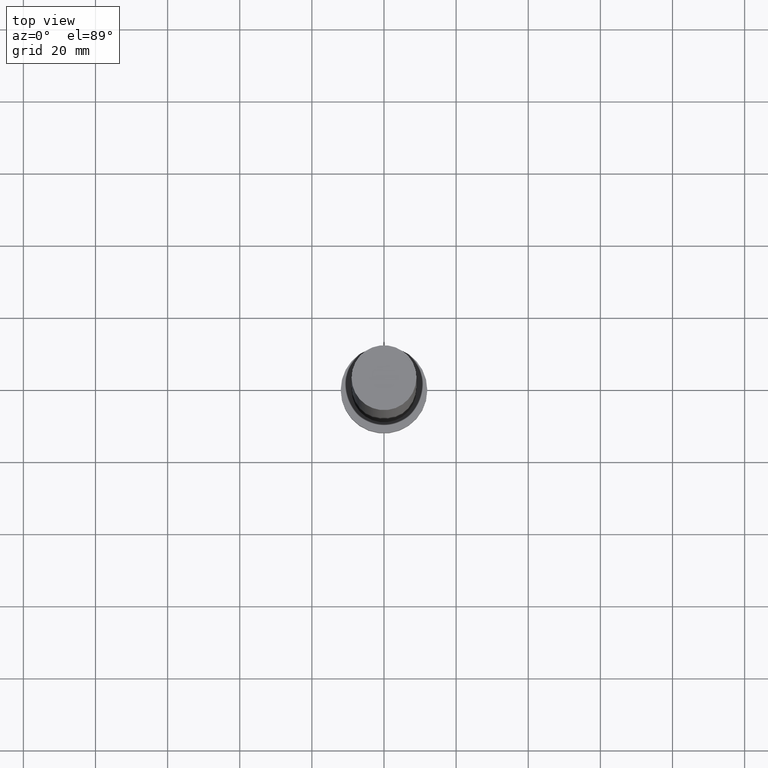
[diagram: clean part render]
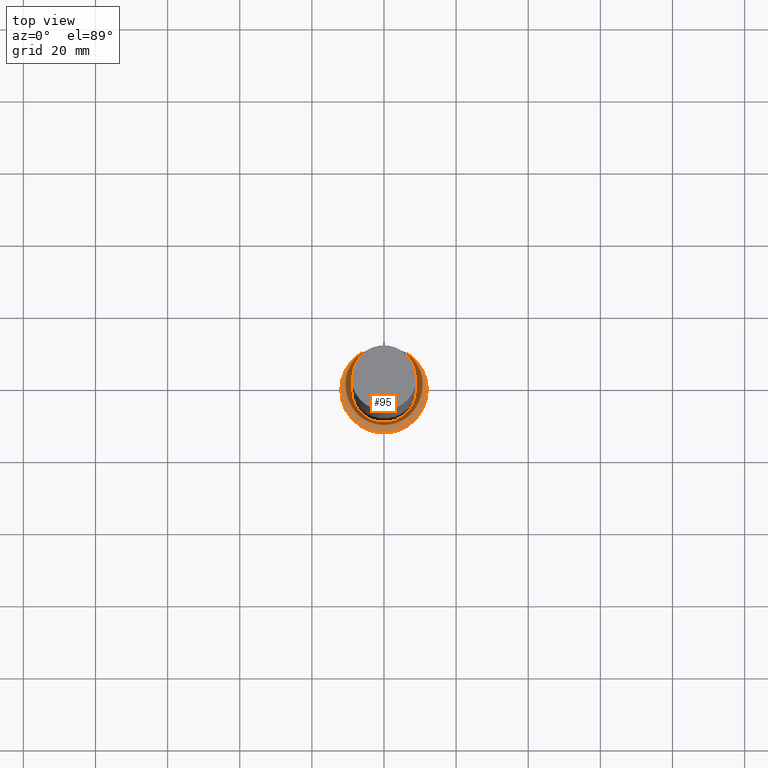
[diagram: same view with one face highlighted and labeled with its STEP entity id]
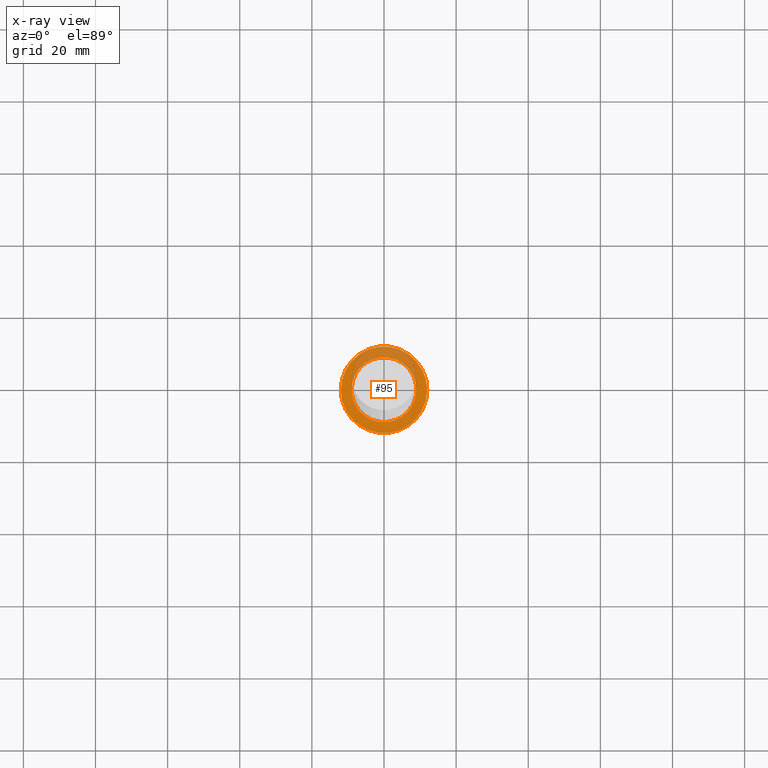
[diagram: x-ray of the same camera — body ghosted, the highlighted face saturated]
A machine part, top view. The second image highlights one B-rep face of the part: STEP entity #95.
The next image is the same camera in x-ray: the body ghosted, the highlighted face saturated — about 30% of this face is hidden behind the body in this view.
In plain terms, the highlighted planar face has unit normal (0, 0, 1).
Its self-contained STEP definition (entity closure, byte-faithful):
#3 = VERTEX_POINT ( 'NONE', #62 ) ;
#4 = VERTEX_POINT ( 'NONE', #147 ) ;
#11 = DIRECTION ( 'NONE',  ( 1.000000000000000000, 0.000000000000000000, 0.000000000000000000 ) ) ;
#23 = CARTESIAN_POINT ( 'NONE',  ( -12.00000000000000178, 0.000000000000000000, 7.000000000000000000 ) ) ;
#34 = DIRECTION ( 'NONE',  ( 1.000000000000000000, 0.000000000000000000, 0.000000000000000000 ) ) ;
#50 = CIRCLE ( 'NONE', #230, 9.000000000000000000 ) ;
#62 = CARTESIAN_POINT ( 'NONE',  ( -9.000000000000000000, 0.000000000000000000, 7.000000000000000000 ) ) ;
#77 = DIRECTION ( 'NONE',  ( 1.000000000000000000, 0.000000000000000000, -0.000000000000000000 ) ) ;
#80 = DIRECTION ( 'NONE',  ( 1.000000000000000000, 0.000000000000000000, 0.000000000000000000 ) ) ;
#91 = CARTESIAN_POINT ( 'NONE',  ( 0.000000000000000000, 0.000000000000000000, 7.000000000000000000 ) ) ;
#94 = CARTESIAN_POINT ( 'NONE',  ( 9.000000000000000000, 1.102182119232617714E-15, 7.000000000000000000 ) ) ;
#95 = ADVANCED_FACE ( 'NONE', ( #114, #247 ), #174, .T. ) ;
#105 = ORIENTED_EDGE ( 'NONE', *, *, #160, .T. ) ;
#113 = ORIENTED_EDGE ( 'NONE', *, *, #209, .F. ) ;
#114 = FACE_BOUND ( 'NONE', #149, .T. ) ;
#129 = VERTEX_POINT ( 'NONE', #94 ) ;
#130 = DIRECTION ( 'NONE',  ( 0.000000000000000000, 0.000000000000000000, 1.000000000000000000 ) ) ;
#138 = CARTESIAN_POINT ( 'NONE',  ( 0.000000000000000000, 0.000000000000000000, 7.000000000000000000 ) ) ;
#139 = CARTESIAN_POINT ( 'NONE',  ( 0.000000000000000000, 0.000000000000000000, 7.000000000000000000 ) ) ;
#141 = CIRCLE ( 'NONE', #161, 9.000000000000000000 ) ;
#147 = CARTESIAN_POINT ( 'NONE',  ( 12.00000000000000178, 1.469576158976824144E-15, 7.000000000000000000 ) ) ;
#149 = EDGE_LOOP ( 'NONE', ( #228, #113 ) ) ;
#160 = EDGE_CURVE ( 'NONE', #4, #241, #182, .T. ) ;
#161 = AXIS2_PLACEMENT_3D ( 'NONE', #253, #130, #80 ) ;
#166 = DIRECTION ( 'NONE',  ( 1.000000000000000000, 0.000000000000000000, 0.000000000000000000 ) ) ;
#171 = DIRECTION ( 'NONE',  ( 0.000000000000000000, 0.000000000000000000, 1.000000000000000000 ) ) ;
#174 = PLANE ( 'NONE',  #190 ) ;
#175 = CARTESIAN_POINT ( 'NONE',  ( 0.000000000000000000, 0.000000000000000000, 7.000000000000000000 ) ) ;
#177 = DIRECTION ( 'NONE',  ( 0.000000000000000000, 0.000000000000000000, 1.000000000000000000 ) ) ;
#182 = CIRCLE ( 'NONE', #214, 12.00000000000000178 ) ;
#186 = ORIENTED_EDGE ( 'NONE', *, *, #196, .T. ) ;
#188 = EDGE_CURVE ( 'NONE', #3, #129, #50, .T. ) ;
#190 = AXIS2_PLACEMENT_3D ( 'NONE', #139, #177, #77 ) ;
#196 = EDGE_CURVE ( 'NONE', #241, #4, #210, .T. ) ;
#197 = DIRECTION ( 'NONE',  ( 0.000000000000000000, 0.000000000000000000, 1.000000000000000000 ) ) ;
#208 = EDGE_LOOP ( 'NONE', ( #186, #105 ) ) ;
#209 = EDGE_CURVE ( 'NONE', #129, #3, #141, .T. ) ;
#210 = CIRCLE ( 'NONE', #243, 12.00000000000000178 ) ;
#211 = DIRECTION ( 'NONE',  ( 0.000000000000000000, 0.000000000000000000, 1.000000000000000000 ) ) ;
#214 = AXIS2_PLACEMENT_3D ( 'NONE', #175, #197, #34 ) ;
#228 = ORIENTED_EDGE ( 'NONE', *, *, #188, .F. ) ;
#230 = AXIS2_PLACEMENT_3D ( 'NONE', #138, #211, #11 ) ;
#241 = VERTEX_POINT ( 'NONE', #23 ) ;
#243 = AXIS2_PLACEMENT_3D ( 'NONE', #91, #171, #166 ) ;
#247 = FACE_OUTER_BOUND ( 'NONE', #208, .T. ) ;
#253 = CARTESIAN_POINT ( 'NONE',  ( 0.000000000000000000, 0.000000000000000000, 7.000000000000000000 ) ) ;